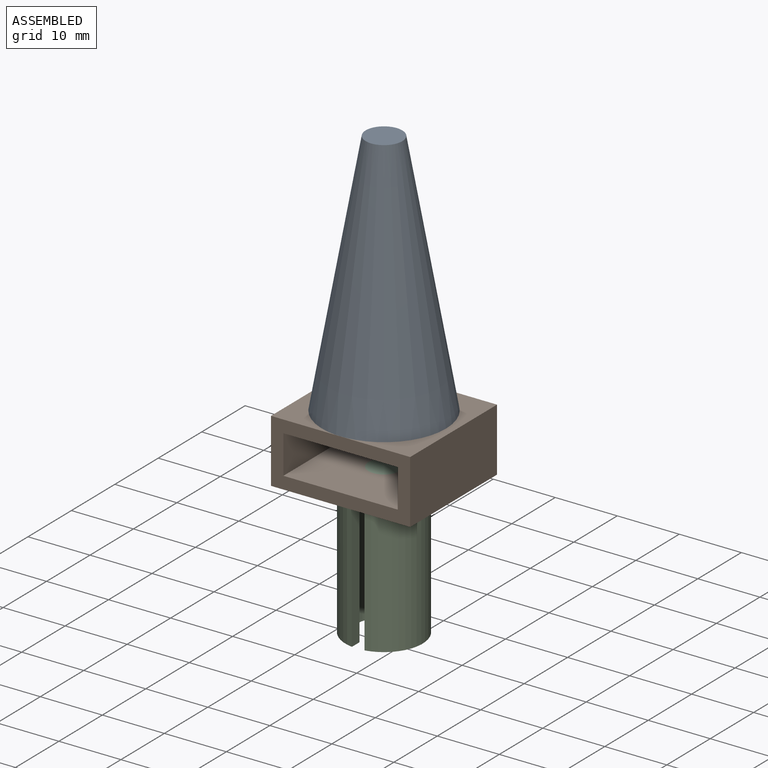
[diagram: assembled view]
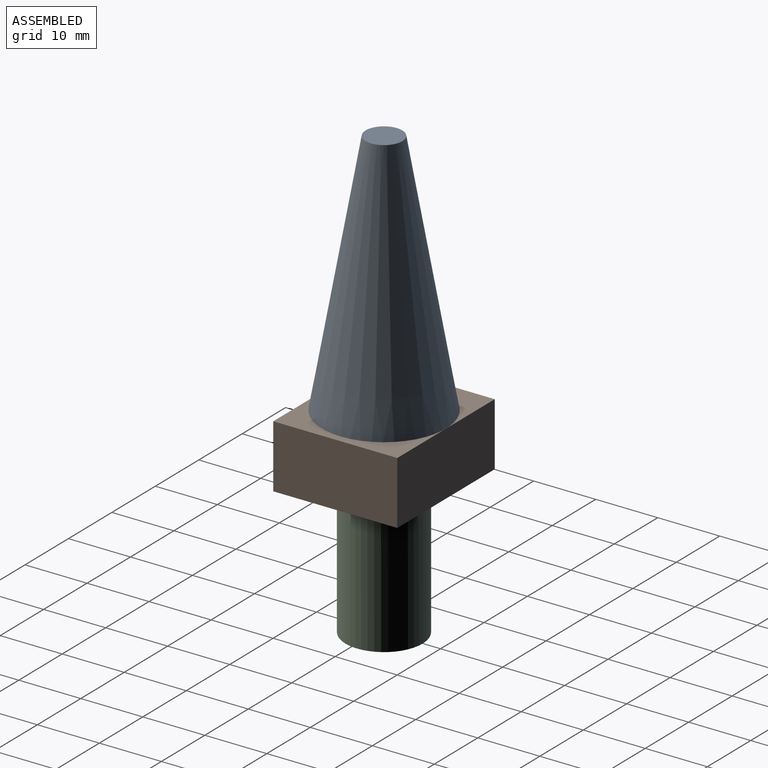
[diagram: assembled view, second angle]
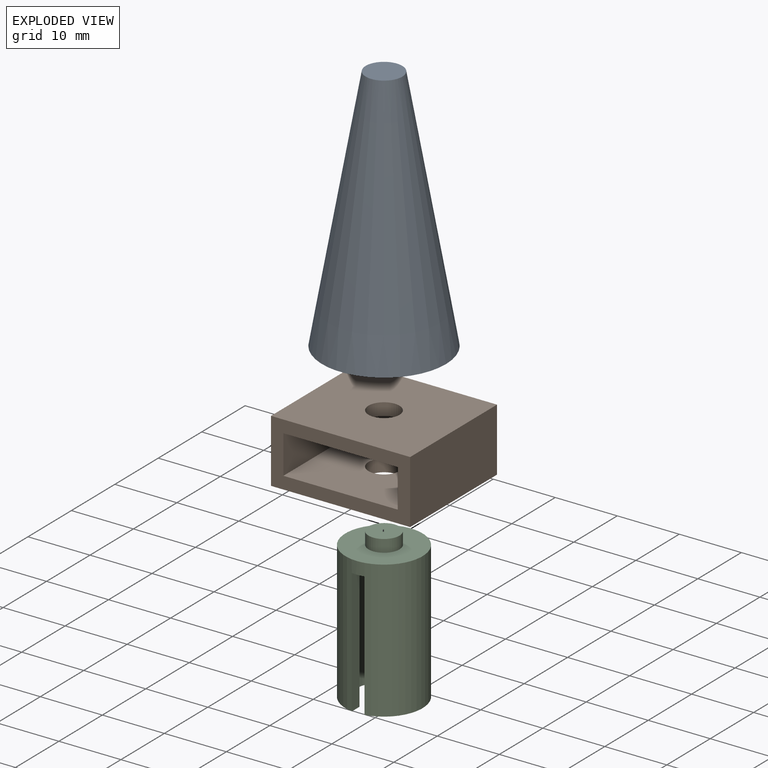
[diagram: exploded view]
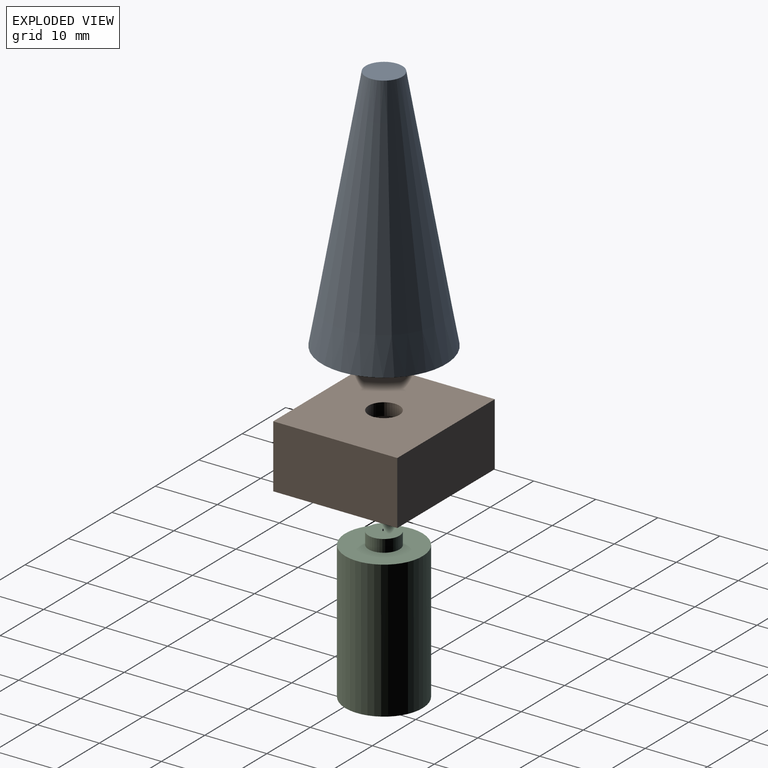
[diagram: exploded view, second angle]
ASSEMBLY  parts=3 mates=2
PART A: 5 faces, bbox 20x20x42 mm
  f0: plane 5.89x5.89mm, normal (0,0,1), area 27.3mm2, adj f2
  f1: plane 20x20mm, normal (0,0,-1), area 294.5mm2, adj f2,f4
  f2: cone r=2.95mm half-angle=10deg, axis (0,0,-1), area 1652.1mm2, adj f0,f1
  f3: plane 5x5mm, normal (0,0,-1), area 19.6mm2, adj f4
  f4: cylinder r=2.5mm len=5mm, axis (0,0,1), area 31.4mm2, adj f1,f3
PART B: 13 faces, bbox 22.4x20x10.2 mm
  f0: plane 22.44x10.2mm, normal (0,-1,0), area 114.6mm2, adj f1,f2,f3,f4,f6,f7,f8,f9
  f1: plane 22.44x20mm, normal (0,0,1), area 429.2mm2, adj f0,f2,f4,f5,f12
  f2: plane 20x10.2mm, normal (-1,0,0), area 204mm2, adj f0,f1,f3,f5
  f3: plane 22.44x20mm, normal (0,0,-1), area 429.2mm2, adj f0,f2,f4,f5,f11
  f4: plane 20x10.2mm, normal (1,0,0), area 204mm2, adj f0,f1,f3,f5
  f5: plane 22.44x10.2mm, normal (0,1,0), area 228.9mm2, adj f1,f2,f3,f4
  f6: plane 18.44x18mm, normal (0,0,-1), area 312.3mm2, adj f0,f7,f9,f10,f12
  f7: plane 18x6.2mm, normal (1,0,0), area 111.6mm2, adj f0,f6,f8,f10
  f8: plane 18.44x18mm, normal (0,0,1), area 312.3mm2, adj f0,f7,f9,f10,f11
  f9: plane 18x6.2mm, normal (-1,0,0), area 111.6mm2, adj f0,f6,f8,f10
  f10: plane 18.44x6.2mm, normal (0,-1,0), area 114.3mm2, adj f6,f7,f8,f9
  f11: cylinder r=2.5mm len=5mm, axis (0,0,-1), area 31.4mm2, adj f3,f8
  f12: cylinder r=2.5mm len=5mm, axis (0,0,-1), area 31.4mm2, adj f1,f6
PART C: 9 faces, bbox 12.4x12.4x24.2 mm
  f0: plane 12.44x12.38mm, normal (0,0,-1), area 54.5mm2, adj f1,f2,f3,f8
  f1: plane 20.15x1.74mm, normal (0,1,0), area 35.1mm2, adj f0,f3,f5,f8
  f2: plane 20.15x1.76mm, normal (0,-1,0), area 35.5mm2, adj f0,f3,f5,f8
  f3: cylinder r=6.22mm len=22.15mm, axis (0,0,-1), area 825.2mm2, adj f0,f1,f2,f4,f5
  f4: plane 12.44x12.44mm, normal (0,0,1), area 101.9mm2, adj f3,f6
  f5: plane 10.72x9mm, normal (0,0,-1), area 67.1mm2, adj f1,f2,f3,f8
  f6: cylinder r=2.5mm len=5mm, axis (0,0,-1), area 31.4mm2, adj f4,f7
  f7: plane 5x5mm, normal (0,0,1), area 19.6mm2, adj f6
  f8: cylinder r=4.5mm len=20.15mm, axis (0,0,-1), area 529.1mm2, adj f0,f1,f2,f5
PLACE A t=(-18.52,-36.06,18.28)mm
PLACE B t=(-4.05,-26.06,2.27)mm
PLACE C rot(axis=(0,0,-1),90deg) t=(-53.27,-72.37,-14.07)mm
MATE fastened C.f3 <-> B.f11  axis (0,0,1) through (-41.35,-36.06,10.08)mm
MATE fastened A.f4 <-> B.f11  axis (0,0,-1) through (-41.35,-36.06,18.28)mm
